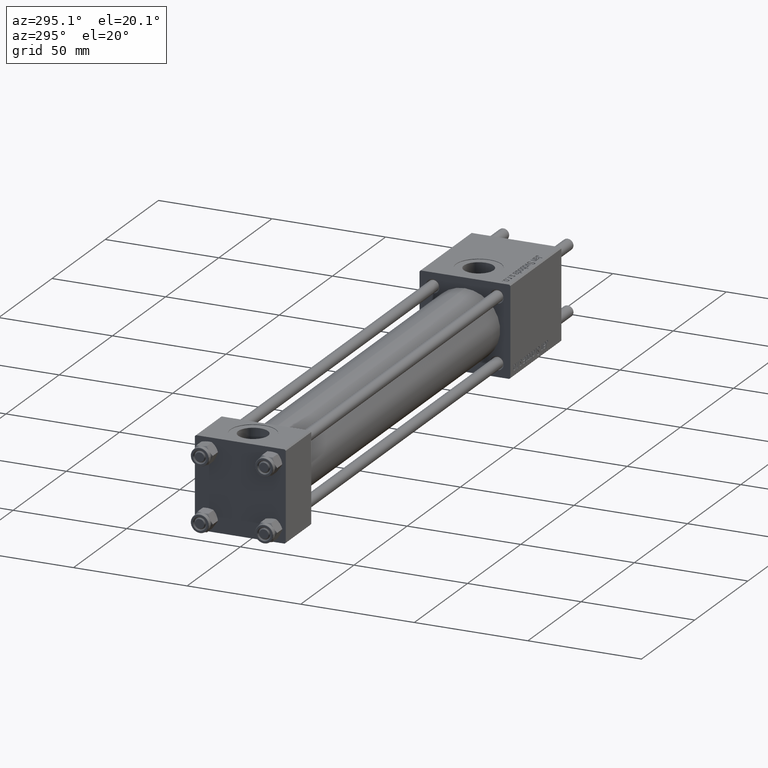
[diagram: clean part render]
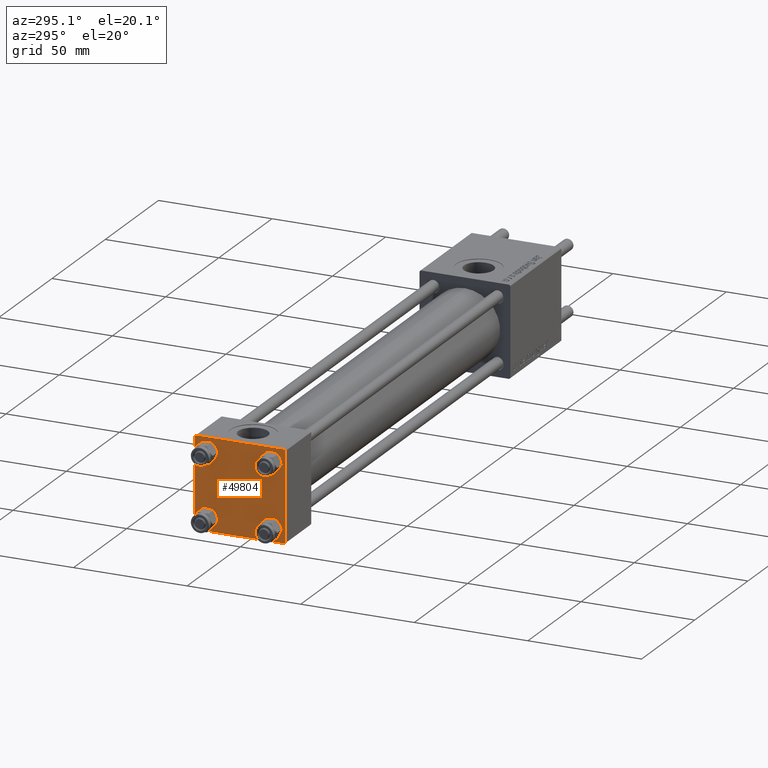
[diagram: same view with one face highlighted and labeled with its STEP entity id]
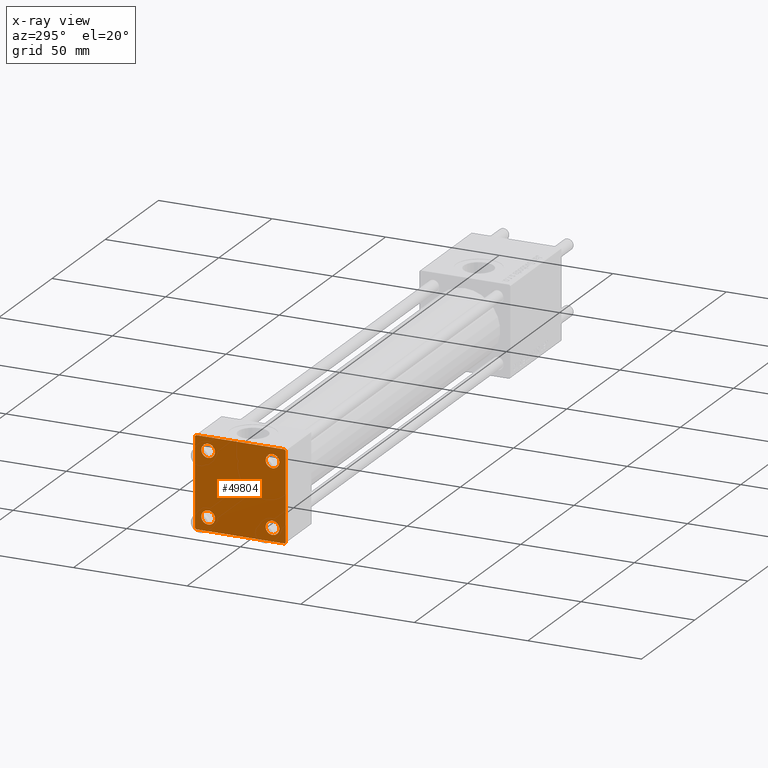
[diagram: x-ray of the same camera — body ghosted, the highlighted face saturated]
A machine part, auxiliary view. The second image highlights one B-rep face of the part: STEP entity #49804.
The next image is the same camera in x-ray: the body ghosted, the highlighted face saturated — about 0% of this face is hidden behind the body in this view.
In plain terms, the highlighted planar face has unit normal (-1, 0, 0).
Its self-contained STEP definition (entity closure, byte-faithful):
#1257 = EDGE_CURVE ( 'NONE', #30215, #44789, #21943, .T. ) ;
#1344 = DIRECTION ( 'NONE',  ( 0.000000000000000000, 0.7071067811865425767, -0.7071067811865525687 ) ) ;
#1577 = CIRCLE ( 'NONE', #30852, 2.999999999999983569 ) ;
#1602 = CARTESIAN_POINT ( 'NONE',  ( 0.000000000000000000, 20.00000000000000000, 20.00000000000000000 ) ) ;
#1609 = CIRCLE ( 'NONE', #42790, 2.999999999999983569 ) ;
#1734 = CARTESIAN_POINT ( 'NONE',  ( 0.000000000000000000, 19.50000000000000000, 20.00000000000000000 ) ) ;
#1829 = ORIENTED_EDGE ( 'NONE', *, *, #25911, .T. ) ;
#2059 = DIRECTION ( 'NONE',  ( 1.000000000000000000, 0.000000000000000000, 0.000000000000000000 ) ) ;
#2075 = CARTESIAN_POINT ( 'NONE',  ( 0.000000000000000000, 14.14999999999999858, 11.15000000000001990 ) ) ;
#2194 = VECTOR ( 'NONE', #42603, 1000.000000000000000 ) ;
#2721 = VERTEX_POINT ( 'NONE', #47293 ) ;
#3069 = DIRECTION ( 'NONE',  ( 0.000000000000000000, 0.000000000000000000, 1.000000000000000000 ) ) ;
#3229 = VERTEX_POINT ( 'NONE', #7853 ) ;
#3693 = VERTEX_POINT ( 'NONE', #36996 ) ;
#3817 = ORIENTED_EDGE ( 'NONE', *, *, #9073, .T. ) ;
#4306 = VERTEX_POINT ( 'NONE', #52493 ) ;
#5332 = EDGE_CURVE ( 'NONE', #6670, #2721, #40721, .T. ) ;
#5485 = ORIENTED_EDGE ( 'NONE', *, *, #54623, .T. ) ;
#6188 = ORIENTED_EDGE ( 'NONE', *, *, #15816, .T. ) ;
#6372 = EDGE_LOOP ( 'NONE', ( #5485, #19340, #43247, #37024, #28808, #16764, #31096, #1829 ) ) ;
#6670 = VERTEX_POINT ( 'NONE', #25833 ) ;
#6917 = ORIENTED_EDGE ( 'NONE', *, *, #12828, .T. ) ;
#6921 = VECTOR ( 'NONE', #7125, 1000.000000000000000 ) ;
#6951 = CARTESIAN_POINT ( 'NONE',  ( 0.000000000000000000, 20.00000000000000000, -19.50000000000002132 ) ) ;
#7125 = DIRECTION ( 'NONE',  ( -0.000000000000000000, -0.7071067811865524577, -0.7071067811865426878 ) ) ;
#7853 = CARTESIAN_POINT ( 'NONE',  ( 0.000000000000000000, -14.14999999999999503, -17.15000000000000924 ) ) ;
#8751 = CARTESIAN_POINT ( 'NONE',  ( 0.000000000000000000, -20.00000000000000355, 19.99999999999998934 ) ) ;
#9073 = EDGE_CURVE ( 'NONE', #3229, #54239, #24362, .T. ) ;
#9392 = LINE ( 'NONE', #38936, #15017 ) ;
#9905 = DIRECTION ( 'NONE',  ( 1.000000000000000000, 0.000000000000000000, 0.000000000000000000 ) ) ;
#10169 = DIRECTION ( 'NONE',  ( 1.000000000000000000, 0.000000000000000000, 0.000000000000000000 ) ) ;
#10463 = EDGE_LOOP ( 'NONE', ( #31435, #22960 ) ) ;
#10500 = DIRECTION ( 'NONE',  ( 1.000000000000000000, 0.000000000000000000, 0.000000000000000000 ) ) ;
#11028 = CARTESIAN_POINT ( 'NONE',  ( 0.000000000000000000, 14.14999999999999858, -14.15000000000000036 ) ) ;
#11968 = EDGE_CURVE ( 'NONE', #13452, #44789, #50640, .T. ) ;
#12233 = CARTESIAN_POINT ( 'NONE',  ( -0.000000000000000000, 19.74999999999986855, -19.75000000000014211 ) ) ;
#12436 = VERTEX_POINT ( 'NONE', #1734 ) ;
#12828 = EDGE_CURVE ( 'NONE', #54239, #3229, #13451, .T. ) ;
#12875 = EDGE_CURVE ( 'NONE', #4306, #19555, #1577, .T. ) ;
#13441 = DIRECTION ( 'NONE',  ( 0.000000000000000000, -1.000000000000000000, 1.734723475976807094E-16 ) ) ;
#13451 = CIRCLE ( 'NONE', #26271, 3.000000000000004441 ) ;
#13452 = VERTEX_POINT ( 'NONE', #40927 ) ;
#14003 = LINE ( 'NONE', #39823, #39026 ) ;
#14300 = CARTESIAN_POINT ( 'NONE',  ( 0.000000000000000000, -20.00000000000000000, -19.49999999999999645 ) ) ;
#14310 = AXIS2_PLACEMENT_3D ( 'NONE', #23987, #10500, #54365 ) ;
#14326 = LINE ( 'NONE', #19209, #42899 ) ;
#15017 = VECTOR ( 'NONE', #44353, 1000.000000000000114 ) ;
#15229 = CARTESIAN_POINT ( 'NONE',  ( 0.000000000000000000, -14.14999999999999503, -14.15000000000000391 ) ) ;
#15816 = EDGE_CURVE ( 'NONE', #35328, #34899, #19860, .T. ) ;
#15957 = DIRECTION ( 'NONE',  ( 1.000000000000000000, 0.000000000000000000, 0.000000000000000000 ) ) ;
#16240 = CARTESIAN_POINT ( 'NONE',  ( 0.000000000000000000, 14.14999999999999858, 14.15000000000000036 ) ) ;
#16413 = FACE_BOUND ( 'NONE', #54687, .T. ) ;
#16764 = ORIENTED_EDGE ( 'NONE', *, *, #23792, .T. ) ;
#16804 = VECTOR ( 'NONE', #28259, 1000.000000000000000 ) ;
#17441 = EDGE_CURVE ( 'NONE', #12436, #3693, #14326, .T. ) ;
#18032 = AXIS2_PLACEMENT_3D ( 'NONE', #16240, #15957, #3069 ) ;
#18365 = EDGE_LOOP ( 'NONE', ( #6917, #3817 ) ) ;
#19209 = CARTESIAN_POINT ( 'NONE',  ( 0.000000000000000000, 20.00000000000000000, 20.00000000000000000 ) ) ;
#19340 = ORIENTED_EDGE ( 'NONE', *, *, #27796, .T. ) ;
#19555 = VERTEX_POINT ( 'NONE', #54723 ) ;
#19860 = CIRCLE ( 'NONE', #18032, 2.999999999999983569 ) ;
#20259 = CARTESIAN_POINT ( 'NONE',  ( 0.000000000000000000, -19.75000000000020961, -19.74999999999979394 ) ) ;
#20563 = DIRECTION ( 'NONE',  ( 1.000000000000000000, 0.000000000000000000, 0.000000000000000000 ) ) ;
#21943 = LINE ( 'NONE', #8751, #2194 ) ;
#22960 = ORIENTED_EDGE ( 'NONE', *, *, #12875, .T. ) ;
#23405 = CARTESIAN_POINT ( 'NONE',  ( -0.000000000000000000, 19.75000000000013500, 19.74999999999986144 ) ) ;
#23537 = PLANE ( 'NONE',  #52223 ) ;
#23792 = EDGE_CURVE ( 'NONE', #30215, #3693, #9392, .T. ) ;
#23987 = CARTESIAN_POINT ( 'NONE',  ( 0.000000000000000000, 14.14999999999999858, 14.15000000000000036 ) ) ;
#24362 = CIRCLE ( 'NONE', #26186, 3.000000000000004441 ) ;
#25806 = ORIENTED_EDGE ( 'NONE', *, *, #55629, .T. ) ;
#25833 = CARTESIAN_POINT ( 'NONE',  ( 0.000000000000000000, -14.14999999999999503, 11.15000000000002345 ) ) ;
#25911 = EDGE_CURVE ( 'NONE', #12436, #54909, #31438, .T. ) ;
#25984 = CIRCLE ( 'NONE', #33325, 2.999999999999983569 ) ;
#26186 = AXIS2_PLACEMENT_3D ( 'NONE', #15229, #2059, #45626 ) ;
#26271 = AXIS2_PLACEMENT_3D ( 'NONE', #48880, #48027, #56337 ) ;
#27403 = LINE ( 'NONE', #1602, #16804 ) ;
#27796 = EDGE_CURVE ( 'NONE', #56136, #49055, #42087, .T. ) ;
#28127 = DIRECTION ( 'NONE',  ( -0.000000000000000000, 0.000000000000000000, 1.000000000000000000 ) ) ;
#28259 = DIRECTION ( 'NONE',  ( 0.000000000000000000, 0.000000000000000000, -1.000000000000000000 ) ) ;
#28530 = ORIENTED_EDGE ( 'NONE', *, *, #5332, .T. ) ;
#28808 = ORIENTED_EDGE ( 'NONE', *, *, #1257, .F. ) ;
#28950 = CARTESIAN_POINT ( 'NONE',  ( 0.000000000000000000, 0.000000000000000000, 0.000000000000000000 ) ) ;
#30215 = VERTEX_POINT ( 'NONE', #52157 ) ;
#30285 = DIRECTION ( 'NONE',  ( 0.000000000000000000, 0.000000000000000000, 1.000000000000000000 ) ) ;
#30299 = EDGE_CURVE ( 'NONE', #49055, #13452, #14003, .T. ) ;
#30333 = CARTESIAN_POINT ( 'NONE',  ( 0.000000000000000000, -14.14999999999999503, -11.15000000000000036 ) ) ;
#30614 = EDGE_CURVE ( 'NONE', #34899, #35328, #44500, .T. ) ;
#30852 = AXIS2_PLACEMENT_3D ( 'NONE', #11028, #41142, #36839 ) ;
#31096 = ORIENTED_EDGE ( 'NONE', *, *, #17441, .F. ) ;
#31435 = ORIENTED_EDGE ( 'NONE', *, *, #38703, .T. ) ;
#31438 = LINE ( 'NONE', #23405, #44376 ) ;
#33325 = AXIS2_PLACEMENT_3D ( 'NONE', #36575, #9905, #36281 ) ;
#33347 = CARTESIAN_POINT ( 'NONE',  ( 0.000000000000000000, 19.50000000000000711, -20.00000000000000711 ) ) ;
#33914 = FACE_BOUND ( 'NONE', #18365, .T. ) ;
#34899 = VERTEX_POINT ( 'NONE', #47717 ) ;
#35328 = VERTEX_POINT ( 'NONE', #2075 ) ;
#36281 = DIRECTION ( 'NONE',  ( 0.000000000000000000, 0.000000000000000000, 1.000000000000000000 ) ) ;
#36575 = CARTESIAN_POINT ( 'NONE',  ( 0.000000000000000000, -14.14999999999999503, 14.15000000000000391 ) ) ;
#36837 = DIRECTION ( 'NONE',  ( 0.000000000000000000, 0.000000000000000000, 1.000000000000000000 ) ) ;
#36839 = DIRECTION ( 'NONE',  ( 0.000000000000000000, 0.000000000000000000, 1.000000000000000000 ) ) ;
#36996 = CARTESIAN_POINT ( 'NONE',  ( 0.000000000000000000, -19.49999999999999289, 19.99999999999998934 ) ) ;
#37024 = ORIENTED_EDGE ( 'NONE', *, *, #11968, .T. ) ;
#37119 = CARTESIAN_POINT ( 'NONE',  ( 0.000000000000000000, -14.14999999999999503, 14.15000000000000391 ) ) ;
#37749 = DIRECTION ( 'NONE',  ( 0.000000000000000000, -0.7071067811865401342, 0.7071067811865549002 ) ) ;
#38703 = EDGE_CURVE ( 'NONE', #19555, #4306, #1609, .T. ) ;
#38936 = CARTESIAN_POINT ( 'NONE',  ( -0.000000000000000000, -19.74999999999992539, 19.75000000000006395 ) ) ;
#39026 = VECTOR ( 'NONE', #13441, 1000.000000000000000 ) ;
#39823 = CARTESIAN_POINT ( 'NONE',  ( 0.000000000000000000, 20.00000000000000000, -20.00000000000000711 ) ) ;
#40700 = DIRECTION ( 'NONE',  ( 0.000000000000000000, -1.000000000000000000, -2.602085213965210149E-16 ) ) ;
#40721 = CIRCLE ( 'NONE', #47142, 2.999999999999983569 ) ;
#40927 = CARTESIAN_POINT ( 'NONE',  ( 0.000000000000000000, -19.50000000000000711, -20.00000000000000000 ) ) ;
#41142 = DIRECTION ( 'NONE',  ( 1.000000000000000000, 0.000000000000000000, 0.000000000000000000 ) ) ;
#42087 = LINE ( 'NONE', #12233, #6921 ) ;
#42603 = DIRECTION ( 'NONE',  ( 0.000000000000000000, 8.673617379884036705E-17, -1.000000000000000000 ) ) ;
#42790 = AXIS2_PLACEMENT_3D ( 'NONE', #56365, #20563, #30285 ) ;
#42899 = VECTOR ( 'NONE', #40700, 1000.000000000000000 ) ;
#43099 = CARTESIAN_POINT ( 'NONE',  ( 0.000000000000000000, 20.00000000000000000, 19.49999999999999289 ) ) ;
#43247 = ORIENTED_EDGE ( 'NONE', *, *, #30299, .T. ) ;
#43376 = EDGE_LOOP ( 'NONE', ( #54367, #6188 ) ) ;
#44353 = DIRECTION ( 'NONE',  ( -0.000000000000000000, 0.7071067811865500152, 0.7071067811865451302 ) ) ;
#44376 = VECTOR ( 'NONE', #1344, 999.9999999999998863 ) ;
#44500 = CIRCLE ( 'NONE', #14310, 2.999999999999983569 ) ;
#44789 = VERTEX_POINT ( 'NONE', #14300 ) ;
#45598 = FACE_BOUND ( 'NONE', #43376, .T. ) ;
#45626 = DIRECTION ( 'NONE',  ( 0.000000000000000000, 0.000000000000000000, 1.000000000000000000 ) ) ;
#46430 = FACE_OUTER_BOUND ( 'NONE', #6372, .T. ) ;
#47142 = AXIS2_PLACEMENT_3D ( 'NONE', #37119, #10169, #36837 ) ;
#47293 = CARTESIAN_POINT ( 'NONE',  ( 0.000000000000000000, -14.14999999999999503, 17.14999999999998792 ) ) ;
#47717 = CARTESIAN_POINT ( 'NONE',  ( 0.000000000000000000, 14.14999999999999858, 17.14999999999998437 ) ) ;
#48027 = DIRECTION ( 'NONE',  ( 1.000000000000000000, 0.000000000000000000, 0.000000000000000000 ) ) ;
#48880 = CARTESIAN_POINT ( 'NONE',  ( 0.000000000000000000, -14.14999999999999503, -14.15000000000000391 ) ) ;
#49055 = VERTEX_POINT ( 'NONE', #33347 ) ;
#49157 = VECTOR ( 'NONE', #37749, 1000.000000000000000 ) ;
#49620 = DIRECTION ( 'NONE',  ( -1.000000000000000000, 0.000000000000000000, -0.000000000000000000 ) ) ;
#49804 = ADVANCED_FACE ( 'NONE', ( #16413, #33914, #51388, #45598, #46430 ), #23537, .T. ) ;
#50640 = LINE ( 'NONE', #20259, #49157 ) ;
#51388 = FACE_BOUND ( 'NONE', #10463, .T. ) ;
#52157 = CARTESIAN_POINT ( 'NONE',  ( 0.000000000000000000, -20.00000000000000355, 19.49999999999998224 ) ) ;
#52223 = AXIS2_PLACEMENT_3D ( 'NONE', #28950, #49620, #28127 ) ;
#52493 = CARTESIAN_POINT ( 'NONE',  ( 0.000000000000000000, 14.14999999999999858, -17.14999999999998437 ) ) ;
#54239 = VERTEX_POINT ( 'NONE', #30333 ) ;
#54365 = DIRECTION ( 'NONE',  ( 0.000000000000000000, 0.000000000000000000, 1.000000000000000000 ) ) ;
#54367 = ORIENTED_EDGE ( 'NONE', *, *, #30614, .T. ) ;
#54623 = EDGE_CURVE ( 'NONE', #54909, #56136, #27403, .T. ) ;
#54687 = EDGE_LOOP ( 'NONE', ( #25806, #28530 ) ) ;
#54723 = CARTESIAN_POINT ( 'NONE',  ( 0.000000000000000000, 14.14999999999999858, -11.15000000000001812 ) ) ;
#54909 = VERTEX_POINT ( 'NONE', #43099 ) ;
#55629 = EDGE_CURVE ( 'NONE', #2721, #6670, #25984, .T. ) ;
#56136 = VERTEX_POINT ( 'NONE', #6951 ) ;
#56337 = DIRECTION ( 'NONE',  ( 0.000000000000000000, 0.000000000000000000, 1.000000000000000000 ) ) ;
#56365 = CARTESIAN_POINT ( 'NONE',  ( 0.000000000000000000, 14.14999999999999858, -14.15000000000000036 ) ) ;